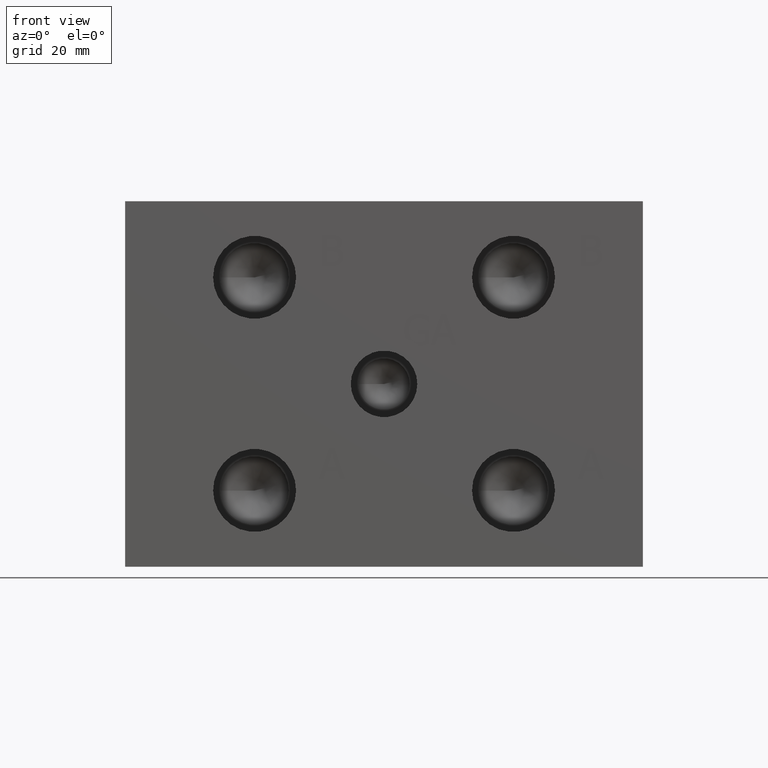
[diagram: clean part render]
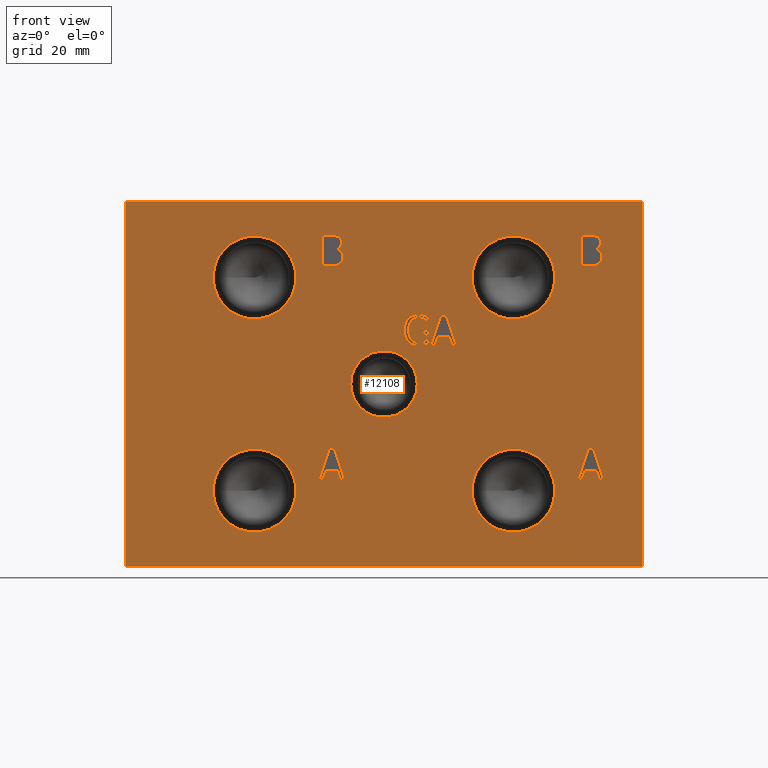
[diagram: same view with one face highlighted and labeled with its STEP entity id]
A machine part, front view. The second image highlights one B-rep face of the part: STEP entity #12108.
In plain terms, the highlighted planar face has unit normal (0, -1, 0).
Its self-contained STEP definition (entity closure, byte-faithful):
#134=CIRCLE('',#12644,6.9342);
#135=CIRCLE('',#12645,6.9342);
#136=CIRCLE('',#12646,8.6487);
#137=CIRCLE('',#12647,8.6487);
#138=CIRCLE('',#12648,8.6487);
#139=CIRCLE('',#12649,8.6487);
#140=CIRCLE('',#12650,8.6487);
#141=CIRCLE('',#12651,8.6487);
#142=CIRCLE('',#12652,8.6487);
#143=CIRCLE('',#12653,8.6487);
#385=FACE_BOUND('',#2031,.T.);
#386=FACE_BOUND('',#2032,.T.);
#387=FACE_BOUND('',#2033,.T.);
#388=FACE_BOUND('',#2034,.T.);
#389=FACE_BOUND('',#2035,.T.);
#390=FACE_BOUND('',#2036,.T.);
#391=FACE_BOUND('',#2037,.T.);
#392=FACE_BOUND('',#2038,.T.);
#393=FACE_BOUND('',#2039,.T.);
#394=FACE_BOUND('',#2040,.T.);
#395=FACE_BOUND('',#2041,.T.);
#701=B_SPLINE_CURVE_WITH_KNOTS('',2,(#19516,#19517,#19518,#19519),
 .UNSPECIFIED.,.F.,.F.,(3,1,3),(0.,1.,2.),.UNSPECIFIED.);
#702=B_SPLINE_CURVE_WITH_KNOTS('',2,(#19521,#19522,#19523,#19524),
 .UNSPECIFIED.,.F.,.F.,(3,1,3),(0.,1.,2.),.UNSPECIFIED.);
#703=B_SPLINE_CURVE_WITH_KNOTS('',2,(#19526,#19527,#19528,#19529),
 .UNSPECIFIED.,.F.,.F.,(3,1,3),(0.,1.,2.),.UNSPECIFIED.);
#704=B_SPLINE_CURVE_WITH_KNOTS('',2,(#19537,#19538,#19539,#19540),
 .UNSPECIFIED.,.F.,.F.,(3,1,3),(0.,1.,2.),.UNSPECIFIED.);
#705=B_SPLINE_CURVE_WITH_KNOTS('',2,(#19542,#19543,#19544,#19545),
 .UNSPECIFIED.,.F.,.F.,(3,1,3),(0.,1.,2.),.UNSPECIFIED.);
#706=B_SPLINE_CURVE_WITH_KNOTS('',2,(#19547,#19548,#19549,#19550),
 .UNSPECIFIED.,.F.,.F.,(3,1,3),(0.,1.,2.),.UNSPECIFIED.);
#707=B_SPLINE_CURVE_WITH_KNOTS('',2,(#19554,#19555,#19556,#19557),
 .UNSPECIFIED.,.F.,.F.,(3,1,3),(0.,1.,2.),.UNSPECIFIED.);
#708=B_SPLINE_CURVE_WITH_KNOTS('',2,(#19559,#19560,#19561,#19562),
 .UNSPECIFIED.,.F.,.F.,(3,1,3),(0.,1.,2.),.UNSPECIFIED.);
#709=B_SPLINE_CURVE_WITH_KNOTS('',2,(#19564,#19565,#19566,#19567),
 .UNSPECIFIED.,.F.,.F.,(3,1,3),(0.,1.,2.),.UNSPECIFIED.);
#710=B_SPLINE_CURVE_WITH_KNOTS('',2,(#19575,#19576,#19577,#19578),
 .UNSPECIFIED.,.F.,.F.,(3,1,3),(0.,1.,2.),.UNSPECIFIED.);
#711=B_SPLINE_CURVE_WITH_KNOTS('',2,(#19580,#19581,#19582,#19583),
 .UNSPECIFIED.,.F.,.F.,(3,1,3),(0.,1.,2.),.UNSPECIFIED.);
#712=B_SPLINE_CURVE_WITH_KNOTS('',2,(#19585,#19586,#19587,#19588),
 .UNSPECIFIED.,.F.,.F.,(3,1,3),(0.,1.,2.),.UNSPECIFIED.);
#713=B_SPLINE_CURVE_WITH_KNOTS('',2,(#19612,#19613,#19614,#19615),
 .UNSPECIFIED.,.F.,.F.,(3,1,3),(0.,1.,2.),.UNSPECIFIED.);
#714=B_SPLINE_CURVE_WITH_KNOTS('',2,(#19617,#19618,#19619,#19620),
 .UNSPECIFIED.,.F.,.F.,(3,1,3),(0.,1.,2.),.UNSPECIFIED.);
#715=B_SPLINE_CURVE_WITH_KNOTS('',2,(#19622,#19623,#19624,#19625),
 .UNSPECIFIED.,.F.,.F.,(3,1,3),(0.,1.,2.),.UNSPECIFIED.);
#716=B_SPLINE_CURVE_WITH_KNOTS('',2,(#19627,#19628,#19629,#19630),
 .UNSPECIFIED.,.F.,.F.,(3,1,3),(0.,1.,2.),.UNSPECIFIED.);
#717=B_SPLINE_CURVE_WITH_KNOTS('',2,(#19632,#19633,#19634,#19635),
 .UNSPECIFIED.,.F.,.F.,(3,1,3),(0.,1.,2.),.UNSPECIFIED.);
#718=B_SPLINE_CURVE_WITH_KNOTS('',2,(#19637,#19638,#19639,#19640),
 .UNSPECIFIED.,.F.,.F.,(3,1,3),(0.,1.,2.),.UNSPECIFIED.);
#719=B_SPLINE_CURVE_WITH_KNOTS('',2,(#19642,#19643,#19644,#19645),
 .UNSPECIFIED.,.F.,.F.,(3,1,3),(0.,1.,2.),.UNSPECIFIED.);
#720=B_SPLINE_CURVE_WITH_KNOTS('',2,(#19651,#19652,#19653,#19654),
 .UNSPECIFIED.,.F.,.F.,(3,1,3),(0.,1.,2.),.UNSPECIFIED.);
#721=B_SPLINE_CURVE_WITH_KNOTS('',2,(#19656,#19657,#19658,#19659),
 .UNSPECIFIED.,.F.,.F.,(3,1,3),(0.,1.,2.),.UNSPECIFIED.);
#722=B_SPLINE_CURVE_WITH_KNOTS('',2,(#19661,#19662,#19663,#19664),
 .UNSPECIFIED.,.F.,.F.,(3,1,3),(0.,1.,2.),.UNSPECIFIED.);
#723=B_SPLINE_CURVE_WITH_KNOTS('',2,(#19666,#19667,#19668,#19669),
 .UNSPECIFIED.,.F.,.F.,(3,1,3),(0.,1.,2.),.UNSPECIFIED.);
#724=B_SPLINE_CURVE_WITH_KNOTS('',2,(#19671,#19672,#19673,#19674),
 .UNSPECIFIED.,.F.,.F.,(3,1,3),(0.,1.,2.),.UNSPECIFIED.);
#725=B_SPLINE_CURVE_WITH_KNOTS('',2,(#19676,#19677,#19678,#19679),
 .UNSPECIFIED.,.F.,.F.,(3,1,3),(0.,1.,2.),.UNSPECIFIED.);
#726=B_SPLINE_CURVE_WITH_KNOTS('',2,(#19690,#19691,#19692,#19693),
 .UNSPECIFIED.,.F.,.F.,(3,1,3),(0.,1.,2.),.UNSPECIFIED.);
#1354=FACE_OUTER_BOUND('',#2030,.T.);
#2030=EDGE_LOOP('',(#9644,#9645,#9646,#9647));
#2031=EDGE_LOOP('',(#9648,#9649,#9650,#9651,#9652,#9653,#9654,#9655));
#2032=EDGE_LOOP('',(#9656,#9657,#9658,#9659,#9660,#9661,#9662,#9663,#9664,
#9665));
#2033=EDGE_LOOP('',(#9666,#9667,#9668,#9669,#9670,#9671,#9672,#9673,#9674,
#9675));
#2034=EDGE_LOOP('',(#9676,#9677));
#2035=EDGE_LOOP('',(#9678,#9679));
#2036=EDGE_LOOP('',(#9680,#9681));
#2037=EDGE_LOOP('',(#9682,#9683));
#2038=EDGE_LOOP('',(#9684,#9685));
#2039=EDGE_LOOP('',(#9686,#9687,#9688,#9689,#9690,#9691,#9692,#9693,#9694,
#9695,#9696,#9697,#9698,#9699,#9700,#9701,#9702,#9703,#9704,#9705,#9706));
#2040=EDGE_LOOP('',(#9707,#9708,#9709,#9710,#9711,#9712,#9713,#9714));
#2041=EDGE_LOOP('',(#9715,#9716,#9717,#9718,#9719,#9720,#9721,#9722));
#3070=LINE('',#19139,#4204);
#3128=LINE('',#19410,#4262);
#3139=LINE('',#19449,#4273);
#3143=LINE('',#19457,#4277);
#3146=LINE('',#19463,#4280);
#3149=LINE('',#19469,#4283);
#3152=LINE('',#19475,#4286);
#3155=LINE('',#19481,#4289);
#3158=LINE('',#19487,#4292);
#3161=LINE('',#19492,#4295);
#3163=LINE('',#19496,#4297);
#3164=LINE('',#19497,#4298);
#3165=LINE('',#19500,#4299);
#3166=LINE('',#19502,#4300);
#3167=LINE('',#19504,#4301);
#3168=LINE('',#19506,#4302);
#3169=LINE('',#19508,#4303);
#3170=LINE('',#19510,#4304);
#3171=LINE('',#19512,#4305);
#3172=LINE('',#19513,#4306);
#3173=LINE('',#19531,#4307);
#3174=LINE('',#19533,#4308);
#3175=LINE('',#19535,#4309);
#3176=LINE('',#19551,#4310);
#3177=LINE('',#19569,#4311);
#3178=LINE('',#19571,#4312);
#3179=LINE('',#19573,#4313);
#3180=LINE('',#19589,#4314);
#3181=LINE('',#19647,#4315);
#3182=LINE('',#19649,#4316);
#3183=LINE('',#19681,#4317);
#3184=LINE('',#19683,#4318);
#3185=LINE('',#19685,#4319);
#3186=LINE('',#19687,#4320);
#3187=LINE('',#19689,#4321);
#3188=LINE('',#19696,#4322);
#3189=LINE('',#19698,#4323);
#3190=LINE('',#19700,#4324);
#3191=LINE('',#19702,#4325);
#3192=LINE('',#19704,#4326);
#3193=LINE('',#19706,#4327);
#3194=LINE('',#19708,#4328);
#3195=LINE('',#19709,#4329);
#4204=VECTOR('',#14272,10.);
#4262=VECTOR('',#14384,10.);
#4273=VECTOR('',#14419,10.);
#4277=VECTOR('',#14425,10.);
#4280=VECTOR('',#14430,10.);
#4283=VECTOR('',#14435,10.);
#4286=VECTOR('',#14440,10.);
#4289=VECTOR('',#14445,10.);
#4292=VECTOR('',#14450,10.);
#4295=VECTOR('',#14455,10.);
#4297=VECTOR('',#14461,10.);
#4298=VECTOR('',#14462,10.);
#4299=VECTOR('',#14463,10.);
#4300=VECTOR('',#14464,10.);
#4301=VECTOR('',#14465,10.);
#4302=VECTOR('',#14466,10.);
#4303=VECTOR('',#14467,10.);
#4304=VECTOR('',#14468,10.);
#4305=VECTOR('',#14469,10.);
#4306=VECTOR('',#14470,10.);
#4307=VECTOR('',#14471,10.);
#4308=VECTOR('',#14472,10.);
#4309=VECTOR('',#14473,10.);
#4310=VECTOR('',#14474,10.);
#4311=VECTOR('',#14475,10.);
#4312=VECTOR('',#14476,10.);
#4313=VECTOR('',#14477,10.);
#4314=VECTOR('',#14478,10.);
#4315=VECTOR('',#14499,10.);
#4316=VECTOR('',#14500,10.);
#4317=VECTOR('',#14501,10.);
#4318=VECTOR('',#14502,10.);
#4319=VECTOR('',#14503,10.);
#4320=VECTOR('',#14504,10.);
#4321=VECTOR('',#14505,10.);
#4322=VECTOR('',#14506,10.);
#4323=VECTOR('',#14507,10.);
#4324=VECTOR('',#14508,10.);
#4325=VECTOR('',#14509,10.);
#4326=VECTOR('',#14510,10.);
#4327=VECTOR('',#14511,10.);
#4328=VECTOR('',#14512,10.);
#4329=VECTOR('',#14513,10.);
#5252=VERTEX_POINT('',#19135);
#5253=VERTEX_POINT('',#19137);
#5310=VERTEX_POINT('',#19407);
#5311=VERTEX_POINT('',#19409);
#5326=VERTEX_POINT('',#19447);
#5327=VERTEX_POINT('',#19448);
#5330=VERTEX_POINT('',#19456);
#5332=VERTEX_POINT('',#19462);
#5334=VERTEX_POINT('',#19468);
#5336=VERTEX_POINT('',#19474);
#5338=VERTEX_POINT('',#19480);
#5340=VERTEX_POINT('',#19486);
#5342=VERTEX_POINT('',#19498);
#5343=VERTEX_POINT('',#19499);
#5344=VERTEX_POINT('',#19501);
#5345=VERTEX_POINT('',#19503);
#5346=VERTEX_POINT('',#19505);
#5347=VERTEX_POINT('',#19507);
#5348=VERTEX_POINT('',#19509);
#5349=VERTEX_POINT('',#19511);
#5350=VERTEX_POINT('',#19514);
#5351=VERTEX_POINT('',#19515);
#5352=VERTEX_POINT('',#19520);
#5353=VERTEX_POINT('',#19525);
#5354=VERTEX_POINT('',#19530);
#5355=VERTEX_POINT('',#19532);
#5356=VERTEX_POINT('',#19534);
#5357=VERTEX_POINT('',#19536);
#5358=VERTEX_POINT('',#19541);
#5359=VERTEX_POINT('',#19546);
#5360=VERTEX_POINT('',#19552);
#5361=VERTEX_POINT('',#19553);
#5362=VERTEX_POINT('',#19558);
#5363=VERTEX_POINT('',#19563);
#5364=VERTEX_POINT('',#19568);
#5365=VERTEX_POINT('',#19570);
#5366=VERTEX_POINT('',#19572);
#5367=VERTEX_POINT('',#19574);
#5368=VERTEX_POINT('',#19579);
#5369=VERTEX_POINT('',#19584);
#5370=VERTEX_POINT('',#19590);
#5371=VERTEX_POINT('',#19591);
#5372=VERTEX_POINT('',#19594);
#5373=VERTEX_POINT('',#19595);
#5374=VERTEX_POINT('',#19598);
#5375=VERTEX_POINT('',#19599);
#5376=VERTEX_POINT('',#19602);
#5377=VERTEX_POINT('',#19603);
#5378=VERTEX_POINT('',#19606);
#5379=VERTEX_POINT('',#19607);
#5380=VERTEX_POINT('',#19610);
#5381=VERTEX_POINT('',#19611);
#5382=VERTEX_POINT('',#19616);
#5383=VERTEX_POINT('',#19621);
#5384=VERTEX_POINT('',#19626);
#5385=VERTEX_POINT('',#19631);
#5386=VERTEX_POINT('',#19636);
#5387=VERTEX_POINT('',#19641);
#5388=VERTEX_POINT('',#19646);
#5389=VERTEX_POINT('',#19648);
#5390=VERTEX_POINT('',#19650);
#5391=VERTEX_POINT('',#19655);
#5392=VERTEX_POINT('',#19660);
#5393=VERTEX_POINT('',#19665);
#5394=VERTEX_POINT('',#19670);
#5395=VERTEX_POINT('',#19675);
#5396=VERTEX_POINT('',#19680);
#5397=VERTEX_POINT('',#19682);
#5398=VERTEX_POINT('',#19684);
#5399=VERTEX_POINT('',#19686);
#5400=VERTEX_POINT('',#19688);
#5401=VERTEX_POINT('',#19694);
#5402=VERTEX_POINT('',#19695);
#5403=VERTEX_POINT('',#19697);
#5404=VERTEX_POINT('',#19699);
#5405=VERTEX_POINT('',#19701);
#5406=VERTEX_POINT('',#19703);
#5407=VERTEX_POINT('',#19705);
#5408=VERTEX_POINT('',#19707);
#6755=EDGE_CURVE('',#5252,#5253,#3070,.T.);
#6837=EDGE_CURVE('',#5310,#5311,#3128,.T.);
#6856=EDGE_CURVE('',#5326,#5327,#3139,.T.);
#6860=EDGE_CURVE('',#5330,#5326,#3143,.T.);
#6863=EDGE_CURVE('',#5332,#5330,#3146,.T.);
#6866=EDGE_CURVE('',#5334,#5332,#3149,.T.);
#6869=EDGE_CURVE('',#5336,#5334,#3152,.T.);
#6872=EDGE_CURVE('',#5338,#5336,#3155,.T.);
#6875=EDGE_CURVE('',#5340,#5338,#3158,.T.);
#6878=EDGE_CURVE('',#5327,#5340,#3161,.T.);
#6880=EDGE_CURVE('',#5310,#5252,#3163,.T.);
#6881=EDGE_CURVE('',#5311,#5253,#3164,.T.);
#6882=EDGE_CURVE('',#5342,#5343,#3165,.T.);
#6883=EDGE_CURVE('',#5343,#5344,#3166,.T.);
#6884=EDGE_CURVE('',#5344,#5345,#3167,.T.);
#6885=EDGE_CURVE('',#5345,#5346,#3168,.T.);
#6886=EDGE_CURVE('',#5346,#5347,#3169,.T.);
#6887=EDGE_CURVE('',#5347,#5348,#3170,.T.);
#6888=EDGE_CURVE('',#5348,#5349,#3171,.T.);
#6889=EDGE_CURVE('',#5349,#5342,#3172,.T.);
#6890=EDGE_CURVE('',#5350,#5351,#701,.T.);
#6891=EDGE_CURVE('',#5351,#5352,#702,.T.);
#6892=EDGE_CURVE('',#5352,#5353,#703,.T.);
#6893=EDGE_CURVE('',#5353,#5354,#3173,.T.);
#6894=EDGE_CURVE('',#5354,#5355,#3174,.T.);
#6895=EDGE_CURVE('',#5355,#5356,#3175,.T.);
#6896=EDGE_CURVE('',#5356,#5357,#704,.T.);
#6897=EDGE_CURVE('',#5357,#5358,#705,.T.);
#6898=EDGE_CURVE('',#5358,#5359,#706,.T.);
#6899=EDGE_CURVE('',#5359,#5350,#3176,.T.);
#6900=EDGE_CURVE('',#5360,#5361,#707,.T.);
#6901=EDGE_CURVE('',#5361,#5362,#708,.T.);
#6902=EDGE_CURVE('',#5362,#5363,#709,.T.);
#6903=EDGE_CURVE('',#5363,#5364,#3177,.T.);
#6904=EDGE_CURVE('',#5364,#5365,#3178,.T.);
#6905=EDGE_CURVE('',#5365,#5366,#3179,.T.);
#6906=EDGE_CURVE('',#5366,#5367,#710,.T.);
#6907=EDGE_CURVE('',#5367,#5368,#711,.T.);
#6908=EDGE_CURVE('',#5368,#5369,#712,.T.);
#6909=EDGE_CURVE('',#5369,#5360,#3180,.T.);
#6910=EDGE_CURVE('',#5370,#5371,#134,.T.);
#6911=EDGE_CURVE('',#5371,#5370,#135,.T.);
#6912=EDGE_CURVE('',#5372,#5373,#136,.T.);
#6913=EDGE_CURVE('',#5373,#5372,#137,.T.);
#6914=EDGE_CURVE('',#5374,#5375,#138,.T.);
#6915=EDGE_CURVE('',#5375,#5374,#139,.T.);
#6916=EDGE_CURVE('',#5376,#5377,#140,.T.);
#6917=EDGE_CURVE('',#5377,#5376,#141,.T.);
#6918=EDGE_CURVE('',#5378,#5379,#142,.T.);
#6919=EDGE_CURVE('',#5379,#5378,#143,.T.);
#6920=EDGE_CURVE('',#5380,#5381,#713,.T.);
#6921=EDGE_CURVE('',#5381,#5382,#714,.T.);
#6922=EDGE_CURVE('',#5382,#5383,#715,.T.);
#6923=EDGE_CURVE('',#5383,#5384,#716,.T.);
#6924=EDGE_CURVE('',#5384,#5385,#717,.T.);
#6925=EDGE_CURVE('',#5385,#5386,#718,.T.);
#6926=EDGE_CURVE('',#5386,#5387,#719,.T.);
#6927=EDGE_CURVE('',#5387,#5388,#3181,.T.);
#6928=EDGE_CURVE('',#5388,#5389,#3182,.T.);
#6929=EDGE_CURVE('',#5389,#5390,#720,.T.);
#6930=EDGE_CURVE('',#5390,#5391,#721,.T.);
#6931=EDGE_CURVE('',#5391,#5392,#722,.T.);
#6932=EDGE_CURVE('',#5392,#5393,#723,.T.);
#6933=EDGE_CURVE('',#5393,#5394,#724,.T.);
#6934=EDGE_CURVE('',#5394,#5395,#725,.T.);
#6935=EDGE_CURVE('',#5395,#5396,#3183,.T.);
#6936=EDGE_CURVE('',#5396,#5397,#3184,.T.);
#6937=EDGE_CURVE('',#5397,#5398,#3185,.T.);
#6938=EDGE_CURVE('',#5398,#5399,#3186,.T.);
#6939=EDGE_CURVE('',#5399,#5400,#3187,.T.);
#6940=EDGE_CURVE('',#5400,#5380,#726,.T.);
#6941=EDGE_CURVE('',#5401,#5402,#3188,.T.);
#6942=EDGE_CURVE('',#5402,#5403,#3189,.T.);
#6943=EDGE_CURVE('',#5403,#5404,#3190,.T.);
#6944=EDGE_CURVE('',#5404,#5405,#3191,.T.);
#6945=EDGE_CURVE('',#5405,#5406,#3192,.T.);
#6946=EDGE_CURVE('',#5406,#5407,#3193,.T.);
#6947=EDGE_CURVE('',#5407,#5408,#3194,.T.);
#6948=EDGE_CURVE('',#5408,#5401,#3195,.T.);
#9644=ORIENTED_EDGE('',*,*,#6880,.T.);
#9645=ORIENTED_EDGE('',*,*,#6755,.T.);
#9646=ORIENTED_EDGE('',*,*,#6881,.F.);
#9647=ORIENTED_EDGE('',*,*,#6837,.F.);
#9648=ORIENTED_EDGE('',*,*,#6882,.T.);
#9649=ORIENTED_EDGE('',*,*,#6883,.T.);
#9650=ORIENTED_EDGE('',*,*,#6884,.T.);
#9651=ORIENTED_EDGE('',*,*,#6885,.T.);
#9652=ORIENTED_EDGE('',*,*,#6886,.T.);
#9653=ORIENTED_EDGE('',*,*,#6887,.T.);
#9654=ORIENTED_EDGE('',*,*,#6888,.T.);
#9655=ORIENTED_EDGE('',*,*,#6889,.T.);
#9656=ORIENTED_EDGE('',*,*,#6890,.T.);
#9657=ORIENTED_EDGE('',*,*,#6891,.T.);
#9658=ORIENTED_EDGE('',*,*,#6892,.T.);
#9659=ORIENTED_EDGE('',*,*,#6893,.T.);
#9660=ORIENTED_EDGE('',*,*,#6894,.T.);
#9661=ORIENTED_EDGE('',*,*,#6895,.T.);
#9662=ORIENTED_EDGE('',*,*,#6896,.T.);
#9663=ORIENTED_EDGE('',*,*,#6897,.T.);
#9664=ORIENTED_EDGE('',*,*,#6898,.T.);
#9665=ORIENTED_EDGE('',*,*,#6899,.T.);
#9666=ORIENTED_EDGE('',*,*,#6900,.T.);
#9667=ORIENTED_EDGE('',*,*,#6901,.T.);
#9668=ORIENTED_EDGE('',*,*,#6902,.T.);
#9669=ORIENTED_EDGE('',*,*,#6903,.T.);
#9670=ORIENTED_EDGE('',*,*,#6904,.T.);
#9671=ORIENTED_EDGE('',*,*,#6905,.T.);
#9672=ORIENTED_EDGE('',*,*,#6906,.T.);
#9673=ORIENTED_EDGE('',*,*,#6907,.T.);
#9674=ORIENTED_EDGE('',*,*,#6908,.T.);
#9675=ORIENTED_EDGE('',*,*,#6909,.T.);
#9676=ORIENTED_EDGE('',*,*,#6910,.T.);
#9677=ORIENTED_EDGE('',*,*,#6911,.T.);
#9678=ORIENTED_EDGE('',*,*,#6912,.T.);
#9679=ORIENTED_EDGE('',*,*,#6913,.T.);
#9680=ORIENTED_EDGE('',*,*,#6914,.T.);
#9681=ORIENTED_EDGE('',*,*,#6915,.T.);
#9682=ORIENTED_EDGE('',*,*,#6916,.T.);
#9683=ORIENTED_EDGE('',*,*,#6917,.T.);
#9684=ORIENTED_EDGE('',*,*,#6918,.T.);
#9685=ORIENTED_EDGE('',*,*,#6919,.T.);
#9686=ORIENTED_EDGE('',*,*,#6920,.T.);
#9687=ORIENTED_EDGE('',*,*,#6921,.T.);
#9688=ORIENTED_EDGE('',*,*,#6922,.T.);
#9689=ORIENTED_EDGE('',*,*,#6923,.T.);
#9690=ORIENTED_EDGE('',*,*,#6924,.T.);
#9691=ORIENTED_EDGE('',*,*,#6925,.T.);
#9692=ORIENTED_EDGE('',*,*,#6926,.T.);
#9693=ORIENTED_EDGE('',*,*,#6927,.T.);
#9694=ORIENTED_EDGE('',*,*,#6928,.T.);
#9695=ORIENTED_EDGE('',*,*,#6929,.T.);
#9696=ORIENTED_EDGE('',*,*,#6930,.T.);
#9697=ORIENTED_EDGE('',*,*,#6931,.T.);
#9698=ORIENTED_EDGE('',*,*,#6932,.T.);
#9699=ORIENTED_EDGE('',*,*,#6933,.T.);
#9700=ORIENTED_EDGE('',*,*,#6934,.T.);
#9701=ORIENTED_EDGE('',*,*,#6935,.T.);
#9702=ORIENTED_EDGE('',*,*,#6936,.T.);
#9703=ORIENTED_EDGE('',*,*,#6937,.T.);
#9704=ORIENTED_EDGE('',*,*,#6938,.T.);
#9705=ORIENTED_EDGE('',*,*,#6939,.T.);
#9706=ORIENTED_EDGE('',*,*,#6940,.T.);
#9707=ORIENTED_EDGE('',*,*,#6941,.T.);
#9708=ORIENTED_EDGE('',*,*,#6942,.T.);
#9709=ORIENTED_EDGE('',*,*,#6943,.T.);
#9710=ORIENTED_EDGE('',*,*,#6944,.T.);
#9711=ORIENTED_EDGE('',*,*,#6945,.T.);
#9712=ORIENTED_EDGE('',*,*,#6946,.T.);
#9713=ORIENTED_EDGE('',*,*,#6947,.T.);
#9714=ORIENTED_EDGE('',*,*,#6948,.T.);
#9715=ORIENTED_EDGE('',*,*,#6856,.T.);
#9716=ORIENTED_EDGE('',*,*,#6878,.T.);
#9717=ORIENTED_EDGE('',*,*,#6875,.T.);
#9718=ORIENTED_EDGE('',*,*,#6872,.T.);
#9719=ORIENTED_EDGE('',*,*,#6869,.T.);
#9720=ORIENTED_EDGE('',*,*,#6866,.T.);
#9721=ORIENTED_EDGE('',*,*,#6863,.T.);
#9722=ORIENTED_EDGE('',*,*,#6860,.T.);
#11135=PLANE('',#12643);
#12108=ADVANCED_FACE('',(#1354,#385,#386,#387,#388,#389,#390,#391,#392,
#393,#394,#395),#11135,.T.);
#12643=AXIS2_PLACEMENT_3D('',#19495,#14459,#14460);
#12644=AXIS2_PLACEMENT_3D('',#19592,#14479,#14480);
#12645=AXIS2_PLACEMENT_3D('',#19593,#14481,#14482);
#12646=AXIS2_PLACEMENT_3D('',#19596,#14483,#14484);
#12647=AXIS2_PLACEMENT_3D('',#19597,#14485,#14486);
#12648=AXIS2_PLACEMENT_3D('',#19600,#14487,#14488);
#12649=AXIS2_PLACEMENT_3D('',#19601,#14489,#14490);
#12650=AXIS2_PLACEMENT_3D('',#19604,#14491,#14492);
#12651=AXIS2_PLACEMENT_3D('',#19605,#14493,#14494);
#12652=AXIS2_PLACEMENT_3D('',#19608,#14495,#14496);
#12653=AXIS2_PLACEMENT_3D('',#19609,#14497,#14498);
#14272=DIRECTION('',(0.,0.,1.));
#14384=DIRECTION('',(0.,0.,1.));
#14419=DIRECTION('',(-1.,0.,0.));
#14425=DIRECTION('',(-0.308774363938384,0.,-0.951135317488761));
#14430=DIRECTION('',(-1.,0.,0.));
#14435=DIRECTION('',(-0.308774363938384,0.,0.951135317488761));
#14440=DIRECTION('',(-1.,0.,0.));
#14445=DIRECTION('',(0.319451166674567,0.,-0.947602739606771));
#14450=DIRECTION('',(1.,0.,0.));
#14455=DIRECTION('',(0.319451166674569,0.,0.94760273960677));
#14459=DIRECTION('center_axis',(0.,-1.,0.));
#14460=DIRECTION('ref_axis',(1.,0.,0.));
#14461=DIRECTION('',(1.,0.,0.));
#14462=DIRECTION('',(1.,0.,0.));
#14463=DIRECTION('',(-1.,0.,0.));
#14464=DIRECTION('',(0.319451166674567,0.,0.947602739606771));
#14465=DIRECTION('',(1.,0.,0.));
#14466=DIRECTION('',(0.319451166674568,0.,-0.947602739606771));
#14467=DIRECTION('',(-1.,0.,0.));
#14468=DIRECTION('',(-0.308774363938384,0.,0.951135317488761));
#14469=DIRECTION('',(-1.,0.,0.));
#14470=DIRECTION('',(-0.308774363938379,0.,-0.951135317488763));
#14471=DIRECTION('',(-1.,0.,0.));
#14472=DIRECTION('',(0.,0.,1.));
#14473=DIRECTION('',(1.,0.,0.));
#14474=DIRECTION('',(0.,0.,-1.));
#14475=DIRECTION('',(-1.,0.,0.));
#14476=DIRECTION('',(0.,0.,1.));
#14477=DIRECTION('',(1.,0.,0.));
#14478=DIRECTION('',(0.,0.,-1.));
#14479=DIRECTION('center_axis',(0.,1.,0.));
#14480=DIRECTION('ref_axis',(1.,0.,0.));
#14481=DIRECTION('center_axis',(0.,1.,0.));
#14482=DIRECTION('ref_axis',(1.,0.,0.));
#14483=DIRECTION('center_axis',(0.,1.,0.));
#14484=DIRECTION('ref_axis',(1.,0.,0.));
#14485=DIRECTION('center_axis',(0.,1.,0.));
#14486=DIRECTION('ref_axis',(1.,0.,0.));
#14487=DIRECTION('center_axis',(0.,1.,0.));
#14488=DIRECTION('ref_axis',(1.,0.,0.));
#14489=DIRECTION('center_axis',(0.,1.,0.));
#14490=DIRECTION('ref_axis',(1.,0.,0.));
#14491=DIRECTION('center_axis',(0.,1.,0.));
#14492=DIRECTION('ref_axis',(1.,0.,0.));
#14493=DIRECTION('center_axis',(0.,1.,0.));
#14494=DIRECTION('ref_axis',(1.,0.,0.));
#14495=DIRECTION('center_axis',(0.,1.,0.));
#14496=DIRECTION('ref_axis',(1.,0.,0.));
#14497=DIRECTION('center_axis',(0.,1.,0.));
#14498=DIRECTION('ref_axis',(1.,0.,0.));
#14499=DIRECTION('',(0.,0.,-1.));
#14500=DIRECTION('',(-1.,0.,0.));
#14501=DIRECTION('',(0.,0.,1.));
#14502=DIRECTION('',(-1.,0.,0.));
#14503=DIRECTION('',(0.,0.,1.));
#14504=DIRECTION('',(1.,0.,0.));
#14505=DIRECTION('',(0.,0.,-1.));
#14506=DIRECTION('',(-1.,0.,0.));
#14507=DIRECTION('',(0.319451166674567,0.,0.947602739606771));
#14508=DIRECTION('',(1.,0.,0.));
#14509=DIRECTION('',(0.319451166674568,0.,-0.947602739606771));
#14510=DIRECTION('',(-1.,0.,0.));
#14511=DIRECTION('',(-0.308774363938383,0.,0.951135317488761));
#14512=DIRECTION('',(-1.,0.,0.));
#14513=DIRECTION('',(-0.308774363938379,0.,-0.951135317488763));
#19135=CARTESIAN_POINT('',(107.95,0.,0.));
#19137=CARTESIAN_POINT('',(107.95,0.,76.2));
#19139=CARTESIAN_POINT('',(107.95,0.,0.));
#19407=CARTESIAN_POINT('',(0.,0.,0.));
#19409=CARTESIAN_POINT('',(0.,0.,76.2));
#19410=CARTESIAN_POINT('',(0.,0.,0.));
#19447=CARTESIAN_POINT('',(95.29469698941,0.,18.25625));
#19448=CARTESIAN_POINT('',(94.4404830638273,0.,18.25625));
#19449=CARTESIAN_POINT('',(47.647348494705,0.,18.25625));
#19456=CARTESIAN_POINT('',(95.8710340958272,0.,20.0315741224459));
#19457=CARTESIAN_POINT('',(88.3592863596987,0.,-3.10729167187842));
#19462=CARTESIAN_POINT('',(98.2947374629925,0.,20.0315741224459));
#19463=CARTESIAN_POINT('',(49.1473687314963,0.,20.0315741224459));
#19468=CARTESIAN_POINT('',(98.8710745694097,0.,18.25625));
#19469=CARTESIAN_POINT('',(96.8386153297762,0.,24.5169503363711));
#19474=CARTESIAN_POINT('',(99.7613095641435,0.,18.25625));
#19475=CARTESIAN_POINT('',(49.8806547820717,0.,18.25625));
#19480=CARTESIAN_POINT('',(97.6206288831652,0.,24.6062499046326));
#19481=CARTESIAN_POINT('',(96.3638961790208,0.,28.3341541279842));
#19486=CARTESIAN_POINT('',(96.5811637448056,0.,24.6062499046326));
#19487=CARTESIAN_POINT('',(48.2905818724028,0.,24.6062499046326));
#19492=CARTESIAN_POINT('',(86.8585020903781,0.,-4.23453009912584));
#19495=CARTESIAN_POINT('Origin',(0.,0.,0.));
#19496=CARTESIAN_POINT('',(0.,0.,0.));
#19497=CARTESIAN_POINT('',(0.,0.,76.2));
#19498=CARTESIAN_POINT('',(41.29429698941,0.,18.25625));
#19499=CARTESIAN_POINT('',(40.4400830638274,0.,18.25625));
#19500=CARTESIAN_POINT('',(20.647148494705,0.,18.25625));
#19501=CARTESIAN_POINT('',(42.5807637448056,0.,24.6062499046326));
#19502=CARTESIAN_POINT('',(35.6134467932108,0.,3.93877606264216));
#19503=CARTESIAN_POINT('',(43.6202288831652,0.,24.6062499046326));
#19504=CARTESIAN_POINT('',(21.2903818724028,0.,24.6062499046326));
#19505=CARTESIAN_POINT('',(45.7609095641435,0.,18.25625));
#19506=CARTESIAN_POINT('',(45.1188408818534,0.,20.1608479662163));
#19507=CARTESIAN_POINT('',(44.8706745694097,0.,18.25625));
#19508=CARTESIAN_POINT('',(22.8804547820717,0.,18.25625));
#19509=CARTESIAN_POINT('',(44.2943374629925,0.,20.0315741224459));
#19510=CARTESIAN_POINT('',(45.4124578093877,0.,16.5873641268536));
#19511=CARTESIAN_POINT('',(41.8706340958272,0.,20.0315741224459));
#19512=CARTESIAN_POINT('',(22.1471687314962,0.,20.0315741224459));
#19513=CARTESIAN_POINT('',(36.9331288393103,0.,4.82229453763913));
#19514=CARTESIAN_POINT('',(98.2432787927767,0.,66.2363147768055));
#19515=CARTESIAN_POINT('',(99.4319740747622,0.,64.6565336011797));
#19516=CARTESIAN_POINT('Ctrl Pts',(98.2432787927767,0.,66.2363147768055));
#19517=CARTESIAN_POINT('Ctrl Pts',(98.8093241651507,0.,66.081938766158));
#19518=CARTESIAN_POINT('Ctrl Pts',(99.4319740747622,0.,65.2637459097264));
#19519=CARTESIAN_POINT('Ctrl Pts',(99.4319740747622,0.,64.6565336011797));
#19520=CARTESIAN_POINT('',(98.7733030959997,0.,63.2208367021582));
#19521=CARTESIAN_POINT('Ctrl Pts',(99.4319740747622,0.,64.6565336011797));
#19522=CARTESIAN_POINT('Ctrl Pts',(99.4319740747622,0.,64.1831138351941));
#19523=CARTESIAN_POINT('Ctrl Pts',(99.0717633832514,0.,63.457546585151));
#19524=CARTESIAN_POINT('Ctrl Pts',(98.7733030959997,0.,63.2208367021582));
#19525=CARTESIAN_POINT('',(96.9465203033379,0.,62.70625));
#19526=CARTESIAN_POINT('Ctrl Pts',(98.7733030959997,0.,63.2208367021582));
#19527=CARTESIAN_POINT('Ctrl Pts',(98.4130924044889,0.,62.9429598829928));
#19528=CARTESIAN_POINT('Ctrl Pts',(97.5948995480573,0.,62.70625));
#19529=CARTESIAN_POINT('Ctrl Pts',(96.9465203033379,0.,62.70625));
#19530=CARTESIAN_POINT('',(95.1248833776978,0.,62.70625));
#19531=CARTESIAN_POINT('',(48.473260151669,0.,62.70625));
#19532=CARTESIAN_POINT('',(95.1248833776978,0.,69.0562499046326));
#19533=CARTESIAN_POINT('',(95.1248833776978,0.,31.353125));
#19534=CARTESIAN_POINT('',(96.8075818937552,0.,69.0562499046326));
#19535=CARTESIAN_POINT('',(47.5624416888489,0.,69.0562499046326));
#19536=CARTESIAN_POINT('',(98.4748428087479,0.,68.7989565535535));
#19537=CARTESIAN_POINT('Ctrl Pts',(96.8075818937552,0.,69.0562499046326));
#19538=CARTESIAN_POINT('Ctrl Pts',(97.4868363406041,0.,69.0562499046326));
#19539=CARTESIAN_POINT('Ctrl Pts',(98.1660907874529,0.,68.9687701652657));
#19540=CARTESIAN_POINT('Ctrl Pts',(98.4748428087479,0.,68.7989565535535));
#19541=CARTESIAN_POINT('',(99.1335137875104,0.,67.6256988726327));
#19542=CARTESIAN_POINT('Ctrl Pts',(98.4748428087479,0.,68.7989565535535));
#19543=CARTESIAN_POINT('Ctrl Pts',(98.8196158991939,0.,68.6188512077981));
#19544=CARTESIAN_POINT('Ctrl Pts',(99.1335137875104,0.,68.0270765003161));
#19545=CARTESIAN_POINT('Ctrl Pts',(99.1335137875104,0.,67.6256988726327));
#19546=CARTESIAN_POINT('',(98.2432787927767,0.,66.267189978935));
#19547=CARTESIAN_POINT('Ctrl Pts',(99.1335137875104,0.,67.6256988726327));
#19548=CARTESIAN_POINT('Ctrl Pts',(99.1335137875104,0.,67.178008441755));
#19549=CARTESIAN_POINT('Ctrl Pts',(98.6600940215249,0.,66.4678787927767));
#19550=CARTESIAN_POINT('Ctrl Pts',(98.2432787927767,0.,66.267189978935));
#19551=CARTESIAN_POINT('',(98.2432787927767,0.,33.1335949894675));
#19552=CARTESIAN_POINT('',(44.2428787927767,0.,66.2363147768055));
#19553=CARTESIAN_POINT('',(45.4315740747622,0.,64.6565336011797));
#19554=CARTESIAN_POINT('Ctrl Pts',(44.2428787927767,0.,66.2363147768055));
#19555=CARTESIAN_POINT('Ctrl Pts',(44.8089241651507,0.,66.081938766158));
#19556=CARTESIAN_POINT('Ctrl Pts',(45.4315740747622,0.,65.2637459097264));
#19557=CARTESIAN_POINT('Ctrl Pts',(45.4315740747622,0.,64.6565336011797));
#19558=CARTESIAN_POINT('',(44.7729030959997,0.,63.2208367021582));
#19559=CARTESIAN_POINT('Ctrl Pts',(45.4315740747622,0.,64.6565336011797));
#19560=CARTESIAN_POINT('Ctrl Pts',(45.4315740747622,0.,64.1831138351941));
#19561=CARTESIAN_POINT('Ctrl Pts',(45.0713633832514,0.,63.457546585151));
#19562=CARTESIAN_POINT('Ctrl Pts',(44.7729030959997,0.,63.2208367021582));
#19563=CARTESIAN_POINT('',(42.9461203033379,0.,62.70625));
#19564=CARTESIAN_POINT('Ctrl Pts',(44.7729030959997,0.,63.2208367021582));
#19565=CARTESIAN_POINT('Ctrl Pts',(44.4126924044889,0.,62.9429598829928));
#19566=CARTESIAN_POINT('Ctrl Pts',(43.5944995480573,0.,62.70625));
#19567=CARTESIAN_POINT('Ctrl Pts',(42.9461203033379,0.,62.70625));
#19568=CARTESIAN_POINT('',(41.1244833776978,0.,62.70625));
#19569=CARTESIAN_POINT('',(21.473060151669,0.,62.70625));
#19570=CARTESIAN_POINT('',(41.1244833776978,0.,69.0562499046326));
#19571=CARTESIAN_POINT('',(41.1244833776978,0.,31.353125));
#19572=CARTESIAN_POINT('',(42.8071818937552,0.,69.0562499046326));
#19573=CARTESIAN_POINT('',(20.5622416888489,0.,69.0562499046326));
#19574=CARTESIAN_POINT('',(44.4744428087479,0.,68.7989565535535));
#19575=CARTESIAN_POINT('Ctrl Pts',(42.8071818937552,0.,69.0562499046326));
#19576=CARTESIAN_POINT('Ctrl Pts',(43.4864363406041,0.,69.0562499046326));
#19577=CARTESIAN_POINT('Ctrl Pts',(44.1656907874529,0.,68.9687701652657));
#19578=CARTESIAN_POINT('Ctrl Pts',(44.4744428087479,0.,68.7989565535535));
#19579=CARTESIAN_POINT('',(45.1331137875104,0.,67.6256988726327));
#19580=CARTESIAN_POINT('Ctrl Pts',(44.4744428087479,0.,68.7989565535535));
#19581=CARTESIAN_POINT('Ctrl Pts',(44.8192158991939,0.,68.6188512077981));
#19582=CARTESIAN_POINT('Ctrl Pts',(45.1331137875104,0.,68.0270765003161));
#19583=CARTESIAN_POINT('Ctrl Pts',(45.1331137875104,0.,67.6256988726327));
#19584=CARTESIAN_POINT('',(44.2428787927767,0.,66.267189978935));
#19585=CARTESIAN_POINT('Ctrl Pts',(45.1331137875104,0.,67.6256988726327));
#19586=CARTESIAN_POINT('Ctrl Pts',(45.1331137875104,0.,67.178008441755));
#19587=CARTESIAN_POINT('Ctrl Pts',(44.6596940215248,0.,66.4678787927767));
#19588=CARTESIAN_POINT('Ctrl Pts',(44.2428787927767,0.,66.267189978935));
#19589=CARTESIAN_POINT('',(44.2428787927767,0.,33.1335949894675));
#19590=CARTESIAN_POINT('',(60.9092,0.,38.1));
#19591=CARTESIAN_POINT('',(47.0408,0.,38.1));
#19592=CARTESIAN_POINT('Origin',(53.975,0.,38.1));
#19593=CARTESIAN_POINT('Origin',(53.975,0.,38.1));
#19594=CARTESIAN_POINT('',(89.6239,0.,15.875));
#19595=CARTESIAN_POINT('',(72.3265,0.,15.875));
#19596=CARTESIAN_POINT('Origin',(80.9752,0.,15.875));
#19597=CARTESIAN_POINT('Origin',(80.9752,0.,15.875));
#19598=CARTESIAN_POINT('',(89.6239,0.,60.325));
#19599=CARTESIAN_POINT('',(72.3265,0.,60.325));
#19600=CARTESIAN_POINT('Origin',(80.9752,0.,60.325));
#19601=CARTESIAN_POINT('Origin',(80.9752,0.,60.325));
#19602=CARTESIAN_POINT('',(35.6235,0.,60.325));
#19603=CARTESIAN_POINT('',(18.3261,0.,60.325));
#19604=CARTESIAN_POINT('Origin',(26.9748,0.,60.325));
#19605=CARTESIAN_POINT('Origin',(26.9748,0.,60.325));
#19606=CARTESIAN_POINT('',(35.6235,0.,15.875));
#19607=CARTESIAN_POINT('',(18.3261,0.,15.875));
#19608=CARTESIAN_POINT('Origin',(26.9748,0.,15.875));
#19609=CARTESIAN_POINT('Origin',(26.9748,0.,15.875));
#19610=CARTESIAN_POINT('',(62.4206543087766,0.,46.2227512096072));
#19611=CARTESIAN_POINT('',(61.2473966278558,0.,46.0374999968302));
#19612=CARTESIAN_POINT('Ctrl Pts',(62.4206543087766,0.,46.2227512096072));
#19613=CARTESIAN_POINT('Ctrl Pts',(62.1067564204601,0.,46.1301256032187));
#19614=CARTESIAN_POINT('Ctrl Pts',(61.602461452345,0.,46.0374999968302));
#19615=CARTESIAN_POINT('Ctrl Pts',(61.2473966278558,0.,46.0374999968302));
#19616=CARTESIAN_POINT('',(59.0552572766618,0.,46.8659845873049));
#19617=CARTESIAN_POINT('Ctrl Pts',(61.2473966278558,0.,46.0374999968302));
#19618=CARTESIAN_POINT('Ctrl Pts',(60.5732880480286,0.,46.0374999968302));
#19619=CARTESIAN_POINT('Ctrl Pts',(59.4566349043452,0.,46.4491693585568));
#19620=CARTESIAN_POINT('Ctrl Pts',(59.0552572766618,0.,46.8659845873049));
#19621=CARTESIAN_POINT('',(58.226772686187,0.,49.341146624686));
#19622=CARTESIAN_POINT('Ctrl Pts',(59.0552572766618,0.,46.8659845873049));
#19623=CARTESIAN_POINT('Ctrl Pts',(58.6538796489784,0.,47.2879456830747));
#19624=CARTESIAN_POINT('Ctrl Pts',(58.226772686187,0.,48.5332455022976));
#19625=CARTESIAN_POINT('Ctrl Pts',(58.226772686187,0.,49.341146624686));
#19626=CARTESIAN_POINT('',(59.0604031436834,0.,51.7545582578081));
#19627=CARTESIAN_POINT('Ctrl Pts',(58.226772686187,0.,49.341146624686));
#19628=CARTESIAN_POINT('Ctrl Pts',(58.226772686187,0.,50.1078808109018));
#19629=CARTESIAN_POINT('Ctrl Pts',(58.6590255159999,0.,51.3223054279952));
#19630=CARTESIAN_POINT('Ctrl Pts',(59.0604031436834,0.,51.7545582578081));
#19631=CARTESIAN_POINT('',(61.2525424948774,0.,52.6242097844555));
#19632=CARTESIAN_POINT('Ctrl Pts',(59.0604031436834,0.,51.7545582578081));
#19633=CARTESIAN_POINT('Ctrl Pts',(59.446343170302,0.,52.1713734865563));
#19634=CARTESIAN_POINT('Ctrl Pts',(60.5784339150501,0.,52.6242097844555));
#19635=CARTESIAN_POINT('Ctrl Pts',(61.2525424948774,0.,52.6242097844555));
#19636=CARTESIAN_POINT('',(62.4309460428198,0.,52.4492503057218));
#19637=CARTESIAN_POINT('Ctrl Pts',(61.2525424948774,0.,52.6242097844555));
#19638=CARTESIAN_POINT('Ctrl Pts',(61.5767321172371,0.,52.6242097844555));
#19639=CARTESIAN_POINT('Ctrl Pts',(62.1633609576975,0.,52.5315841780671));
#19640=CARTESIAN_POINT('Ctrl Pts',(62.4309460428198,0.,52.4492503057217));
#19641=CARTESIAN_POINT('',(63.3314727715967,0.,52.0787478801678));
#19642=CARTESIAN_POINT('Ctrl Pts',(62.4309460428198,0.,52.4492503057217));
#19643=CARTESIAN_POINT('Ctrl Pts',(62.6470724577262,0.,52.3874999014628));
#19644=CARTESIAN_POINT('Ctrl Pts',(63.1719508939276,0.,52.1610817525131));
#19645=CARTESIAN_POINT('Ctrl Pts',(63.3314727715967,0.,52.0787478801678));
#19646=CARTESIAN_POINT('',(63.3314727715967,0.,51.0598662098945));
#19647=CARTESIAN_POINT('',(63.3314727715967,0.,26.0393739400839));
#19648=CARTESIAN_POINT('',(63.2594306332945,0.,51.0598662098945));
#19649=CARTESIAN_POINT('',(31.6657363857983,0.,51.0598662098945));
#19650=CARTESIAN_POINT('',(62.4566753779277,0.,51.5950363801391));
#19651=CARTESIAN_POINT('Ctrl Pts',(63.2594306332945,0.,51.0598662098945));
#19652=CARTESIAN_POINT('Ctrl Pts',(63.0999087556255,0.,51.1988046194772));
#19653=CARTESIAN_POINT('Ctrl Pts',(62.7654273992226,0.,51.4509521035348));
#19654=CARTESIAN_POINT('Ctrl Pts',(62.4566753779277,0.,51.5950363801391));
#19655=CARTESIAN_POINT('',(61.1547710214674,0.,51.8934966673908));
#19656=CARTESIAN_POINT('Ctrl Pts',(62.4566753779277,0.,51.5950363801391));
#19657=CARTESIAN_POINT('Ctrl Pts',(62.1993820268486,0.,51.7236830556786));
#19658=CARTESIAN_POINT('Ctrl Pts',(61.5355651810645,0.,51.8934966673908));
#19659=CARTESIAN_POINT('Ctrl Pts',(61.1547710214674,0.,51.8934966673908));
#19660=CARTESIAN_POINT('',(59.1067159468776,0.,49.3668759597939));
#19661=CARTESIAN_POINT('Ctrl Pts',(61.1547710214674,0.,51.8934966673908));
#19662=CARTESIAN_POINT('Ctrl Pts',(60.2388066916257,0.,51.8934966673908));
#19663=CARTESIAN_POINT('Ctrl Pts',(59.1067159468776,0.,50.5144043056068));
#19664=CARTESIAN_POINT('Ctrl Pts',(59.1067159468776,0.,49.3668759597939));
#19665=CARTESIAN_POINT('',(59.6881989203164,0.,47.4423216937222));
#19666=CARTESIAN_POINT('Ctrl Pts',(59.1067159468776,0.,49.3668759597939));
#19667=CARTESIAN_POINT('Ctrl Pts',(59.1067159468776,0.,48.7287884491177));
#19668=CARTESIAN_POINT('Ctrl Pts',(59.4051762341294,0.,47.7716571831034));
#19669=CARTESIAN_POINT('Ctrl Pts',(59.6881989203164,0.,47.4423216937222));
#19670=CARTESIAN_POINT('',(61.2165214257263,0.,46.7682131138949));
#19671=CARTESIAN_POINT('Ctrl Pts',(59.6881989203164,0.,47.4423216937222));
#19672=CARTESIAN_POINT('Ctrl Pts',(59.9609298724603,0.,47.1129862043409));
#19673=CARTESIAN_POINT('Ctrl Pts',(60.7328099256976,0.,46.7682131138949));
#19674=CARTESIAN_POINT('Ctrl Pts',(61.2165214257264,0.,46.7682131138949));
#19675=CARTESIAN_POINT('',(62.5235716492083,0.,46.9740477947582));
#19676=CARTESIAN_POINT('Ctrl Pts',(61.2165214257264,0.,46.7682131138949));
#19677=CARTESIAN_POINT('Ctrl Pts',(61.5715862502155,0.,46.7682131138949));
#19678=CARTESIAN_POINT('Ctrl Pts',(62.2817158991939,0.,46.8711304543265));
#19679=CARTESIAN_POINT('Ctrl Pts',(62.5235716492083,0.,46.9740477947582));
#19680=CARTESIAN_POINT('',(62.5235716492083,0.,48.6155793746429));
#19681=CARTESIAN_POINT('',(62.5235716492083,0.,23.4870238973791));
#19682=CARTESIAN_POINT('',(61.0518536810357,0.,48.6155793746429));
#19683=CARTESIAN_POINT('',(31.2617858246041,0.,48.6155793746429));
#19684=CARTESIAN_POINT('',(61.0518536810357,0.,49.3565842257508));
#19685=CARTESIAN_POINT('',(61.0518536810357,0.,24.3077896873215));
#19686=CARTESIAN_POINT('',(63.3572021067046,0.,49.3565842257508));
#19687=CARTESIAN_POINT('',(30.5259268405179,0.,49.3565842257508));
#19688=CARTESIAN_POINT('',(63.3572021067046,0.,46.5829619011179));
#19689=CARTESIAN_POINT('',(63.3572021067046,0.,24.6782921128754));
#19690=CARTESIAN_POINT('Ctrl Pts',(63.3572021067046,0.,46.5829619011179));
#19691=CARTESIAN_POINT('Ctrl Pts',(63.1976802290355,0.,46.5109197628158));
#19692=CARTESIAN_POINT('Ctrl Pts',(62.6522183247478,0.,46.2896474808877));
#19693=CARTESIAN_POINT('Ctrl Pts',(62.4206543087766,0.,46.2227512096072));
#19694=CARTESIAN_POINT('',(64.5870643248628,0.,46.1610008053482));
#19695=CARTESIAN_POINT('',(63.7328503992801,0.,46.1610008053482));
#19696=CARTESIAN_POINT('',(32.2935321624314,0.,46.1610008053482));
#19697=CARTESIAN_POINT('',(65.8735310802583,0.,52.5110007099807));
#19698=CARTESIAN_POINT('',(53.4941491292931,0.,15.7894686727424));
#19699=CARTESIAN_POINT('',(66.912996218618,0.,52.5110007099807));
#19700=CARTESIAN_POINT('',(32.9367655401292,0.,52.5110007099807));
#19701=CARTESIAN_POINT('',(69.0536768995962,0.,46.1610008053482));
#19702=CARTESIAN_POINT('',(71.4466684873763,0.,39.0625594127505));
#19703=CARTESIAN_POINT('',(68.1634419048625,0.,46.1610008053482));
#19704=CARTESIAN_POINT('',(34.5268384497981,0.,46.1610008053482));
#19705=CARTESIAN_POINT('',(67.5871047984453,0.,47.9363249277941));
#19706=CARTESIAN_POINT('',(71.6924603509404,0.,35.2903636276975));
#19707=CARTESIAN_POINT('',(65.16340143128,0.,47.9363249277941));
#19708=CARTESIAN_POINT('',(33.7935523992226,0.,47.9363249277941));
#19709=CARTESIAN_POINT('',(55.0178910801946,0.,16.6845296498968));